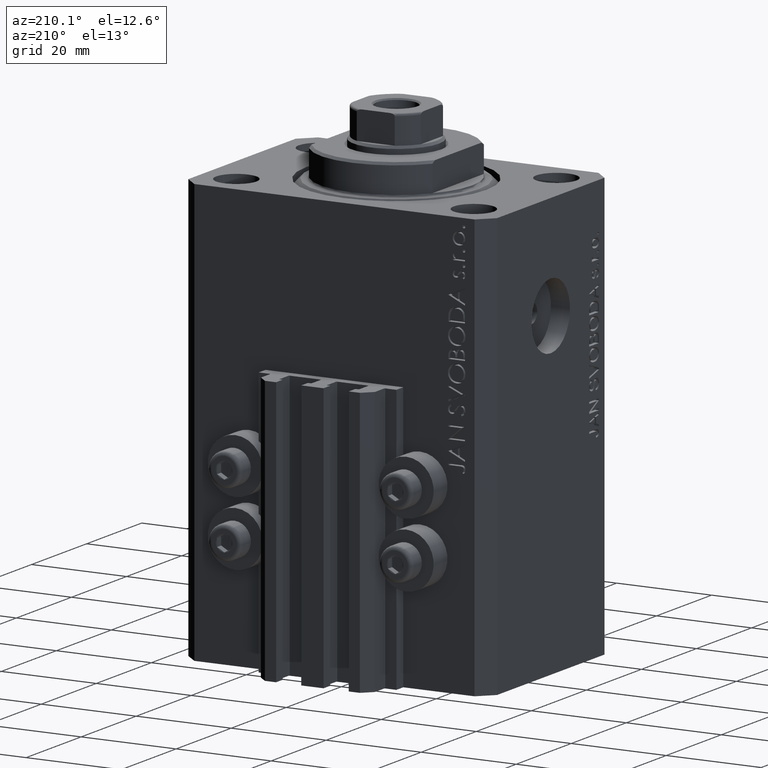
[diagram: clean part render]
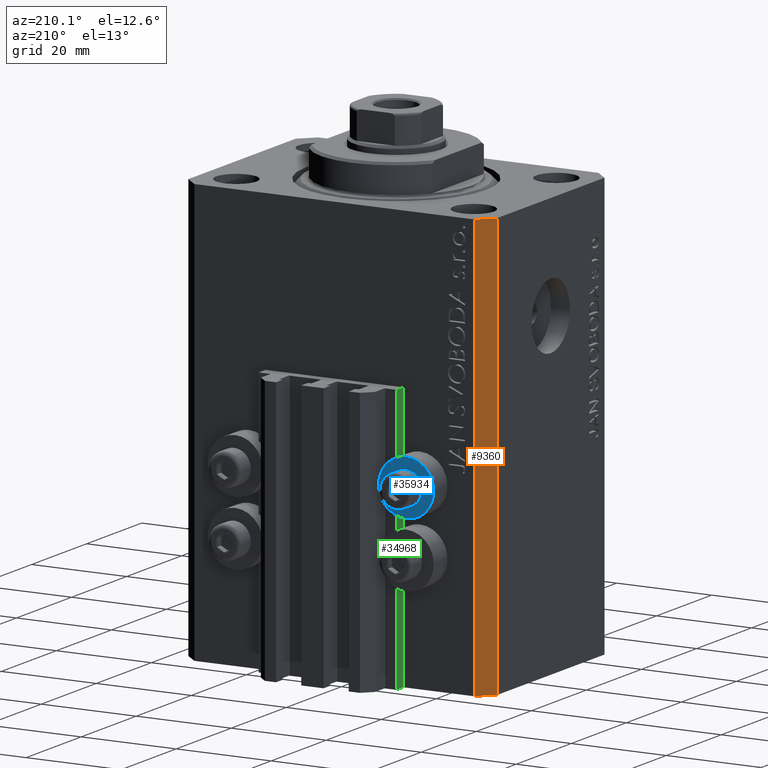
[diagram: same view with three faces highlighted in distinct colors, each labeled with its STEP entity id]
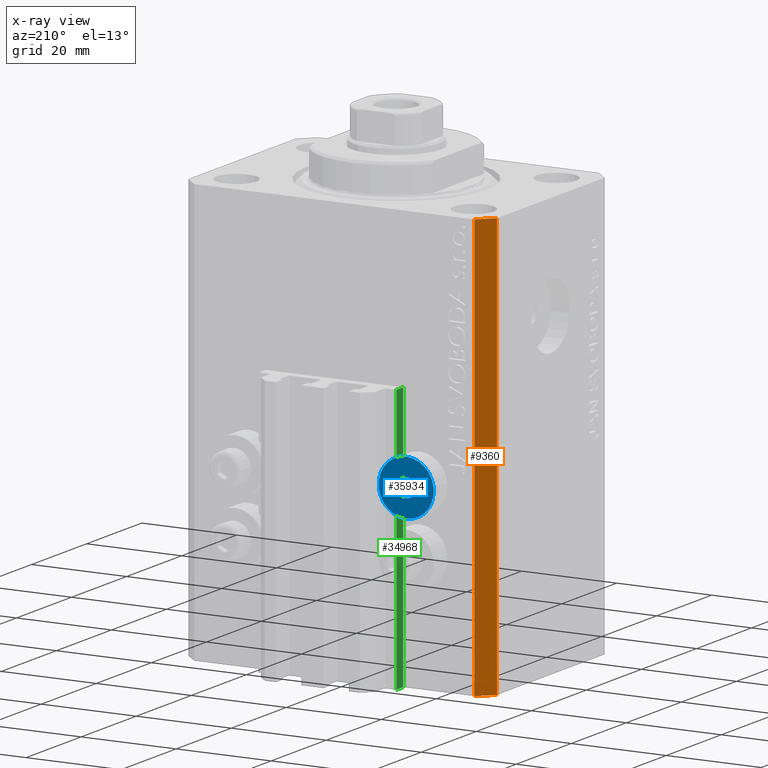
[diagram: x-ray of the same camera — body ghosted, the three highlighted faces saturated]
A machine part, auxiliary view with three faces highlighted in distinct colors.
The next image is the same camera in x-ray (body ghosted, the three faces saturated) — at least one of them is partly hidden behind the body in this view.
Their STEP definitions:

[orange] entity #9360 — the highlighted planar face has unit normal (-0.7071, 0.7071, 0).
#550 = VECTOR ( 'NONE', #42864, 1000.000000000000000 ) ;
#5829 = ORIENTED_EDGE ( 'NONE', *, *, #26022, .F. ) ;
#7041 = EDGE_CURVE ( 'NONE', #46529, #30540, #11004, .T. ) ;
#7429 = DIRECTION ( 'NONE',  ( -0.7071067811865474617, -0.7071067811865474617, 0.000000000000000000 ) ) ;
#9360 = ADVANCED_FACE ( 'NONE', ( #27726 ), #14080, .T. ) ;
#10553 = CARTESIAN_POINT ( 'NONE',  ( -32.49999999999650413, 19.49999999999949907, -89.00000000000000000 ) ) ;
#10870 = VERTEX_POINT ( 'NONE', #31248 ) ;
#11004 = LINE ( 'NONE', #40214, #43914 ) ;
#11614 = DIRECTION ( 'NONE',  ( -0.7071067811865474617, -0.7071067811865474617, 0.000000000000000000 ) ) ;
#13900 = DIRECTION ( 'NONE',  ( 0.000000000000000000, 0.000000000000000000, 1.000000000000000000 ) ) ;
#14080 = PLANE ( 'NONE',  #40950 ) ;
#18565 = CARTESIAN_POINT ( 'NONE',  ( -29.49999999999650413, 22.49999999999949907, 0.000000000000000000 ) ) ;
#18804 = CARTESIAN_POINT ( 'NONE',  ( -29.49999999999650413, 22.49999999999949907, 0.000000000000000000 ) ) ;
#19794 = ORIENTED_EDGE ( 'NONE', *, *, #7041, .T. ) ;
#21323 = LINE ( 'NONE', #32548, #46632 ) ;
#22397 = LINE ( 'NONE', #18804, #28807 ) ;
#23688 = CARTESIAN_POINT ( 'NONE',  ( -29.49999999999650413, 22.49999999999949907, -89.00000000000000000 ) ) ;
#24616 = CARTESIAN_POINT ( 'NONE',  ( -29.49999999999650413, 22.49999999999949907, -89.00000000000000000 ) ) ;
#26022 = EDGE_CURVE ( 'NONE', #27853, #10870, #22397, .T. ) ;
#27506 = EDGE_CURVE ( 'NONE', #30540, #10870, #43342, .T. ) ;
#27726 = FACE_OUTER_BOUND ( 'NONE', #40096, .T. ) ;
#27853 = VERTEX_POINT ( 'NONE', #18565 ) ;
#28709 = CARTESIAN_POINT ( 'NONE',  ( -32.49999999999650413, 19.49999999999949907, -89.00000000000000000 ) ) ;
#28807 = VECTOR ( 'NONE', #11614, 1000.000000000000114 ) ;
#30540 = VERTEX_POINT ( 'NONE', #28709 ) ;
#31248 = CARTESIAN_POINT ( 'NONE',  ( -32.49999999999650413, 19.49999999999949907, 0.000000000000000000 ) ) ;
#32015 = DIRECTION ( 'NONE',  ( -0.7071067811865475727, 0.7071067811865475727, 0.000000000000000000 ) ) ;
#32548 = CARTESIAN_POINT ( 'NONE',  ( -29.49999999999650413, 22.49999999999949907, -89.00000000000000000 ) ) ;
#37488 = ORIENTED_EDGE ( 'NONE', *, *, #38085, .F. ) ;
#38085 = EDGE_CURVE ( 'NONE', #46529, #27853, #21323, .T. ) ;
#39445 = DIRECTION ( 'NONE',  ( -0.7071067811865474617, -0.7071067811865474617, 0.000000000000000000 ) ) ;
#40096 = EDGE_LOOP ( 'NONE', ( #5829, #37488, #19794, #43585 ) ) ;
#40214 = CARTESIAN_POINT ( 'NONE',  ( -29.49999999999650413, 22.49999999999949907, -89.00000000000000000 ) ) ;
#40950 = AXIS2_PLACEMENT_3D ( 'NONE', #24616, #32015, #39445 ) ;
#42864 = DIRECTION ( 'NONE',  ( 0.000000000000000000, 0.000000000000000000, 1.000000000000000000 ) ) ;
#43342 = LINE ( 'NONE', #10553, #550 ) ;
#43585 = ORIENTED_EDGE ( 'NONE', *, *, #27506, .T. ) ;
#43914 = VECTOR ( 'NONE', #7429, 1000.000000000000114 ) ;
#46529 = VERTEX_POINT ( 'NONE', #23688 ) ;
#46632 = VECTOR ( 'NONE', #13900, 1000.000000000000000 ) ;

[blue] entity #35934 — the highlighted planar face has unit normal (0, -1, 0).
#620 = VERTEX_POINT ( 'NONE', #1628 ) ;
#1285 = CARTESIAN_POINT ( 'NONE',  ( -18.00000000000000355, 27.49999999996051514, -50.39999999999999858 ) ) ;
#1516 = DIRECTION ( 'NONE',  ( 0.000000000000000000, 0.000000000000000000, 1.000000000000000000 ) ) ;
#1628 = CARTESIAN_POINT ( 'NONE',  ( -18.00000000000000355, 27.49999999996051514, -48.39999999999999858 ) ) ;
#1712 = DIRECTION ( 'NONE',  ( 0.000000000000000000, -1.000000000000000000, 0.000000000000000000 ) ) ;
#2520 = CARTESIAN_POINT ( 'NONE',  ( -18.00000000000000355, 27.49999999996051514, -50.39999999999999858 ) ) ;
#4382 = DIRECTION ( 'NONE',  ( 0.000000000000000000, 0.000000000000000000, 1.000000000000000000 ) ) ;
#5034 = AXIS2_PLACEMENT_3D ( 'NONE', #10187, #37149, #4382 ) ;
#6547 = AXIS2_PLACEMENT_3D ( 'NONE', #33792, #41460, #26630 ) ;
#9917 = VERTEX_POINT ( 'NONE', #25678 ) ;
#10179 = PLANE ( 'NONE',  #20563 ) ;
#10187 = CARTESIAN_POINT ( 'NONE',  ( -18.00000000000000355, 27.49999999996051514, -50.39999999999999858 ) ) ;
#10460 = VERTEX_POINT ( 'NONE', #27132 ) ;
#10874 = DIRECTION ( 'NONE',  ( 0.000000000000000000, 0.000000000000000000, 1.000000000000000000 ) ) ;
#14949 = CIRCLE ( 'NONE', #6547, 5.799999999999999822 ) ;
#18641 = CARTESIAN_POINT ( 'NONE',  ( -18.00000000000000355, 27.49999999996051514, -56.20000000000000284 ) ) ;
#19540 = AXIS2_PLACEMENT_3D ( 'NONE', #2520, #42487, #10874 ) ;
#20563 = AXIS2_PLACEMENT_3D ( 'NONE', #24790, #1712, #41688 ) ;
#23642 = EDGE_CURVE ( 'NONE', #9917, #44571, #27938, .T. ) ;
#24121 = EDGE_CURVE ( 'NONE', #620, #10460, #25660, .T. ) ;
#24211 = EDGE_CURVE ( 'NONE', #44571, #9917, #14949, .T. ) ;
#24790 = CARTESIAN_POINT ( 'NONE',  ( -12.20000000000000284, 27.49999999996051514, -50.39999999999999858 ) ) ;
#25456 = EDGE_LOOP ( 'NONE', ( #45640, #42092 ) ) ;
#25660 = CIRCLE ( 'NONE', #5034, 2.000000000000001776 ) ;
#25678 = CARTESIAN_POINT ( 'NONE',  ( -18.00000000000000355, 27.49999999996051514, -44.60000000000000142 ) ) ;
#26630 = DIRECTION ( 'NONE',  ( 0.000000000000000000, 0.000000000000000000, 1.000000000000000000 ) ) ;
#27132 = CARTESIAN_POINT ( 'NONE',  ( -18.00000000000000355, 27.49999999996051514, -52.40000000000000568 ) ) ;
#27584 = DIRECTION ( 'NONE',  ( 0.000000000000000000, 1.000000000000000000, 0.000000000000000000 ) ) ;
#27709 = EDGE_LOOP ( 'NONE', ( #35668, #42841 ) ) ;
#27938 = CIRCLE ( 'NONE', #19540, 5.799999999999999822 ) ;
#28375 = FACE_BOUND ( 'NONE', #27709, .T. ) ;
#32535 = EDGE_CURVE ( 'NONE', #10460, #620, #41859, .T. ) ;
#33792 = CARTESIAN_POINT ( 'NONE',  ( -18.00000000000000355, 27.49999999996051514, -50.39999999999999858 ) ) ;
#35668 = ORIENTED_EDGE ( 'NONE', *, *, #24121, .F. ) ;
#35934 = ADVANCED_FACE ( 'NONE', ( #28375, #42971 ), #10179, .F. ) ;
#37149 = DIRECTION ( 'NONE',  ( 0.000000000000000000, 1.000000000000000000, 0.000000000000000000 ) ) ;
#41111 = AXIS2_PLACEMENT_3D ( 'NONE', #1285, #27584, #1516 ) ;
#41460 = DIRECTION ( 'NONE',  ( -0.000000000000000000, 1.000000000000000000, -0.000000000000000000 ) ) ;
#41688 = DIRECTION ( 'NONE',  ( 0.000000000000000000, -0.000000000000000000, -1.000000000000000000 ) ) ;
#41859 = CIRCLE ( 'NONE', #41111, 2.000000000000001776 ) ;
#42092 = ORIENTED_EDGE ( 'NONE', *, *, #24211, .T. ) ;
#42487 = DIRECTION ( 'NONE',  ( -0.000000000000000000, 1.000000000000000000, -0.000000000000000000 ) ) ;
#42841 = ORIENTED_EDGE ( 'NONE', *, *, #32535, .F. ) ;
#42971 = FACE_OUTER_BOUND ( 'NONE', #25456, .T. ) ;
#44571 = VERTEX_POINT ( 'NONE', #18641 ) ;
#45640 = ORIENTED_EDGE ( 'NONE', *, *, #23642, .T. ) ;

[green] entity #34968 — the highlighted planar face has unit normal (-1, 0, 0).
#132 = CARTESIAN_POINT ( 'NONE',  ( -14.50000000000000000, 22.49999999999949907, -89.00000000000000000 ) ) ;
#289 = EDGE_CURVE ( 'NONE', #27101, #4968, #16270, .T. ) ;
#1577 = EDGE_CURVE ( 'NONE', #23969, #27101, #13046, .T. ) ;
#4309 = DIRECTION ( 'NONE',  ( -1.000000000000000000, 0.000000000000000000, 0.000000000000000000 ) ) ;
#4968 = VERTEX_POINT ( 'NONE', #9295 ) ;
#9295 = CARTESIAN_POINT ( 'NONE',  ( -14.50000000000000000, 22.49999999999949907, -33.00000000000000000 ) ) ;
#9356 = EDGE_CURVE ( 'NONE', #24057, #4968, #42557, .T. ) ;
#9459 = DIRECTION ( 'NONE',  ( 0.000000000000000000, -1.000000000000000000, 0.000000000000000000 ) ) ;
#9791 = CARTESIAN_POINT ( 'NONE',  ( -14.50000000000000000, 22.49999999999949907, -89.00000000000000000 ) ) ;
#10644 = DIRECTION ( 'NONE',  ( 0.000000000000000000, 0.000000000000000000, 1.000000000000000000 ) ) ;
#10761 = CARTESIAN_POINT ( 'NONE',  ( -14.50000000000000000, 24.99999999999949196, -89.00000000000000000 ) ) ;
#10762 = ORIENTED_EDGE ( 'NONE', *, *, #12805, .F. ) ;
#11710 = DIRECTION ( 'NONE',  ( 0.000000000000000000, 0.000000000000000000, 1.000000000000000000 ) ) ;
#12805 = EDGE_CURVE ( 'NONE', #23969, #24057, #35533, .T. ) ;
#13046 = LINE ( 'NONE', #27413, #30760 ) ;
#13357 = CARTESIAN_POINT ( 'NONE',  ( -14.50000000000000000, 24.99999999999949196, -33.00000000000000000 ) ) ;
#13382 = DIRECTION ( 'NONE',  ( 0.000000000000000000, 0.000000000000000000, 1.000000000000000000 ) ) ;
#14192 = VECTOR ( 'NONE', #17182, 1000.000000000000000 ) ;
#14469 = EDGE_LOOP ( 'NONE', ( #19873, #10762, #41015, #40561 ) ) ;
#16270 = LINE ( 'NONE', #9791, #25380 ) ;
#16893 = CARTESIAN_POINT ( 'NONE',  ( -14.50000000000000000, 24.99999999999949196, -89.00000000000000000 ) ) ;
#17182 = DIRECTION ( 'NONE',  ( 0.000000000000000000, -1.000000000000000000, 0.000000000000000000 ) ) ;
#18064 = CARTESIAN_POINT ( 'NONE',  ( -14.50000000000000000, 24.99999999999949196, -89.00000000000000000 ) ) ;
#19873 = ORIENTED_EDGE ( 'NONE', *, *, #9356, .F. ) ;
#22015 = FACE_OUTER_BOUND ( 'NONE', #14469, .T. ) ;
#23969 = VERTEX_POINT ( 'NONE', #16893 ) ;
#24057 = VERTEX_POINT ( 'NONE', #29971 ) ;
#25380 = VECTOR ( 'NONE', #13382, 1000.000000000000000 ) ;
#26200 = PLANE ( 'NONE',  #40419 ) ;
#27101 = VERTEX_POINT ( 'NONE', #132 ) ;
#27413 = CARTESIAN_POINT ( 'NONE',  ( -14.50000000000000000, 24.99999999999949196, -89.00000000000000000 ) ) ;
#29971 = CARTESIAN_POINT ( 'NONE',  ( -14.50000000000000000, 24.99999999999949196, -33.00000000000000000 ) ) ;
#30760 = VECTOR ( 'NONE', #9459, 1000.000000000000000 ) ;
#33372 = VECTOR ( 'NONE', #10644, 1000.000000000000000 ) ;
#34968 = ADVANCED_FACE ( 'NONE', ( #22015 ), #26200, .T. ) ;
#35533 = LINE ( 'NONE', #18064, #33372 ) ;
#40419 = AXIS2_PLACEMENT_3D ( 'NONE', #10761, #4309, #11710 ) ;
#40561 = ORIENTED_EDGE ( 'NONE', *, *, #289, .T. ) ;
#41015 = ORIENTED_EDGE ( 'NONE', *, *, #1577, .T. ) ;
#42557 = LINE ( 'NONE', #13357, #14192 ) ;